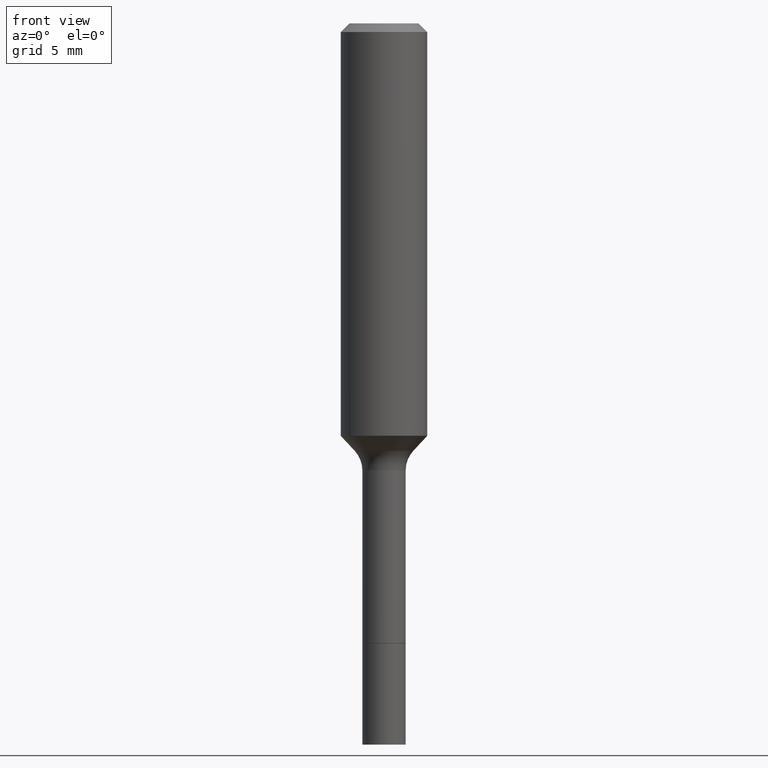
[diagram: clean part render]
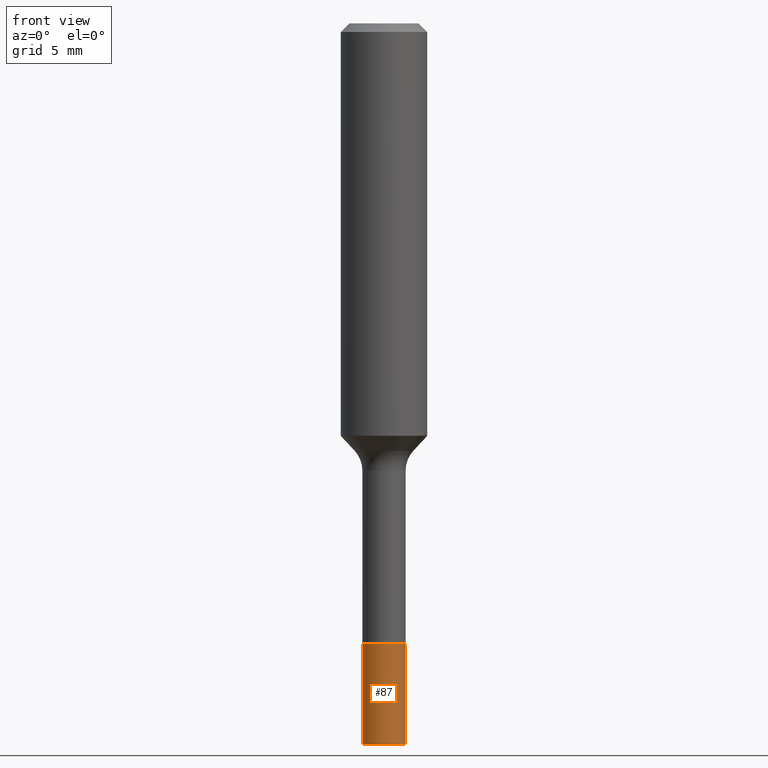
[diagram: same view with one face highlighted and labeled with its STEP entity id]
A machine part, front view. The second image highlights one B-rep face of the part: STEP entity #87.
In plain terms, the highlighted cylindrical surface (edge-blend (fillet) strip) has radius 1.4999 mm, axis along (-0, 0, 1).
Its self-contained STEP definition (entity closure, byte-faithful):
#18 = ORIENTED_EDGE ( 'NONE', *, *, #145, .T. ) ;
#43 = LINE ( 'NONE', #98, #462 ) ;
#60 = ORIENTED_EDGE ( 'NONE', *, *, #149, .F. ) ;
#84 = CARTESIAN_POINT ( 'NONE',  ( 4.138955954468343780E-29, -5.909332165992023872E-15, -1.692500000000000115 ) ) ;
#87 = ADVANCED_FACE ( 'NONE', ( #401 ), #365, .T. ) ;
#98 = CARTESIAN_POINT ( 'NONE',  ( 0.05905000000000006077, -6.321676112109398003E-15, -1.692500000000000115 ) ) ;
#110 = VERTEX_POINT ( 'NONE', #512 ) ;
#128 = CARTESIAN_POINT ( 'NONE',  ( 4.138955954468343780E-29, -5.909332165992023872E-15, -1.692500000000000115 ) ) ;
#132 = CARTESIAN_POINT ( 'NONE',  ( -0.05904999999999999832, -5.971581105286039085E-15, -1.692500000000000115 ) ) ;
#142 = VERTEX_POINT ( 'NONE', #318 ) ;
#145 = EDGE_CURVE ( 'NONE', #163, #110, #304, .T. ) ;
#149 = EDGE_CURVE ( 'NONE', #163, #369, #358, .T. ) ;
#163 = VERTEX_POINT ( 'NONE', #442 ) ;
#179 = CIRCLE ( 'NONE', #505, 0.05904999999999999832 ) ;
#199 = DIRECTION ( 'NONE',  ( -2.445468806185136597E-29, 3.491481338843145583E-15, 1.000000000000000000 ) ) ;
#205 = VECTOR ( 'NONE', #504, 39.37007874015748143 ) ;
#246 = DIRECTION ( 'NONE',  ( 1.000000000000000000, -6.982962677686275388E-15, 0.000000000000000000 ) ) ;
#247 = AXIS2_PLACEMENT_3D ( 'NONE', #84, #199, #322 ) ;
#252 = ORIENTED_EDGE ( 'NONE', *, *, #402, .T. ) ;
#304 = CIRCLE ( 'NONE', #498, 0.05905000000000011628 ) ;
#318 = CARTESIAN_POINT ( 'NONE',  ( 0.05904999999999999832, -6.321676112109398003E-15, -1.692500000000000115 ) ) ;
#322 = DIRECTION ( 'NONE',  ( 1.000000000000000000, -6.982962677686265922E-15, 0.000000000000000000 ) ) ;
#358 = LINE ( 'NONE', #429, #205 ) ;
#365 = CYLINDRICAL_SURFACE ( 'NONE', #247, 0.05905000000000006077 ) ;
#369 = VERTEX_POINT ( 'NONE', #132 ) ;
#375 = DIRECTION ( 'NONE',  ( 1.000000000000000000, -6.982962677686273021E-15, 0.000000000000000000 ) ) ;
#392 = CARTESIAN_POINT ( 'NONE',  ( 4.813905344975441835E-29, -6.872981015512731707E-15, -1.968500000000000139 ) ) ;
#393 = EDGE_CURVE ( 'NONE', #369, #142, #179, .T. ) ;
#401 = FACE_OUTER_BOUND ( 'NONE', #421, .T. ) ;
#402 = EDGE_CURVE ( 'NONE', #110, #142, #43, .T. ) ;
#421 = EDGE_LOOP ( 'NONE', ( #60, #18, #252, #513 ) ) ;
#429 = CARTESIAN_POINT ( 'NONE',  ( -0.05905000000000006077, -5.489756680525684379E-15, -1.692500000000000115 ) ) ;
#442 = CARTESIAN_POINT ( 'NONE',  ( -0.05905000000000013016, -5.971581105286037508E-15, -1.968500000000000139 ) ) ;
#443 = DIRECTION ( 'NONE',  ( -2.445468806185136597E-29, 3.491481338843145583E-15, 1.000000000000000000 ) ) ;
#462 = VECTOR ( 'NONE', #486, 39.37007874015748143 ) ;
#469 = DIRECTION ( 'NONE',  ( -2.445468806185136597E-29, 3.491481338843145583E-15, 1.000000000000000000 ) ) ;
#486 = DIRECTION ( 'NONE',  ( -2.445468806185136877E-29, 3.491481338843145188E-15, 1.000000000000000000 ) ) ;
#498 = AXIS2_PLACEMENT_3D ( 'NONE', #392, #469, #246 ) ;
#504 = DIRECTION ( 'NONE',  ( -2.445468806185136877E-29, 3.491481338843145188E-15, 1.000000000000000000 ) ) ;
#505 = AXIS2_PLACEMENT_3D ( 'NONE', #128, #443, #375 ) ;
#512 = CARTESIAN_POINT ( 'NONE',  ( 0.05905000000000011628, -7.285324961630107416E-15, -1.968500000000000139 ) ) ;
#513 = ORIENTED_EDGE ( 'NONE', *, *, #393, .F. ) ;